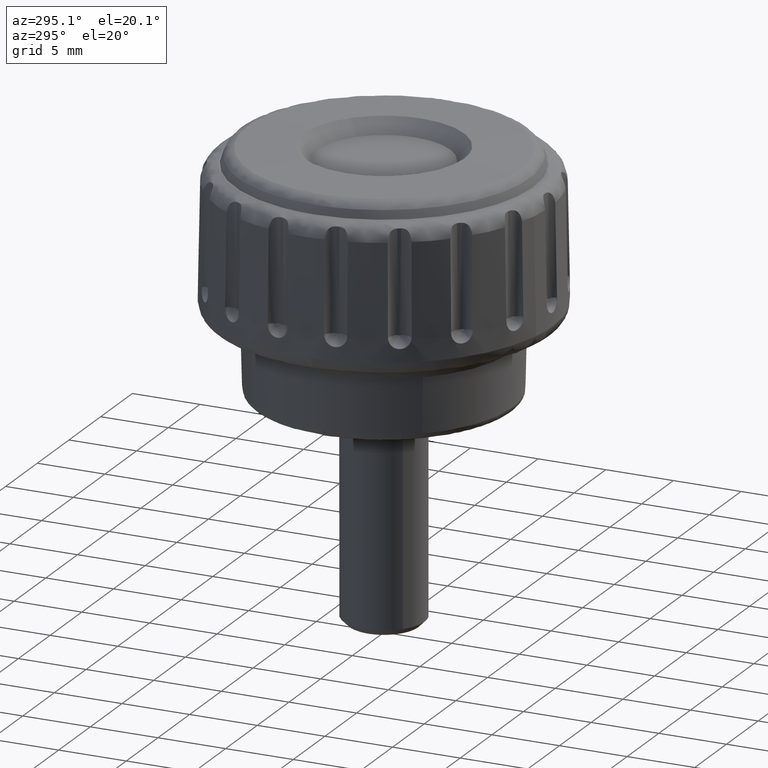
[diagram: clean part render]
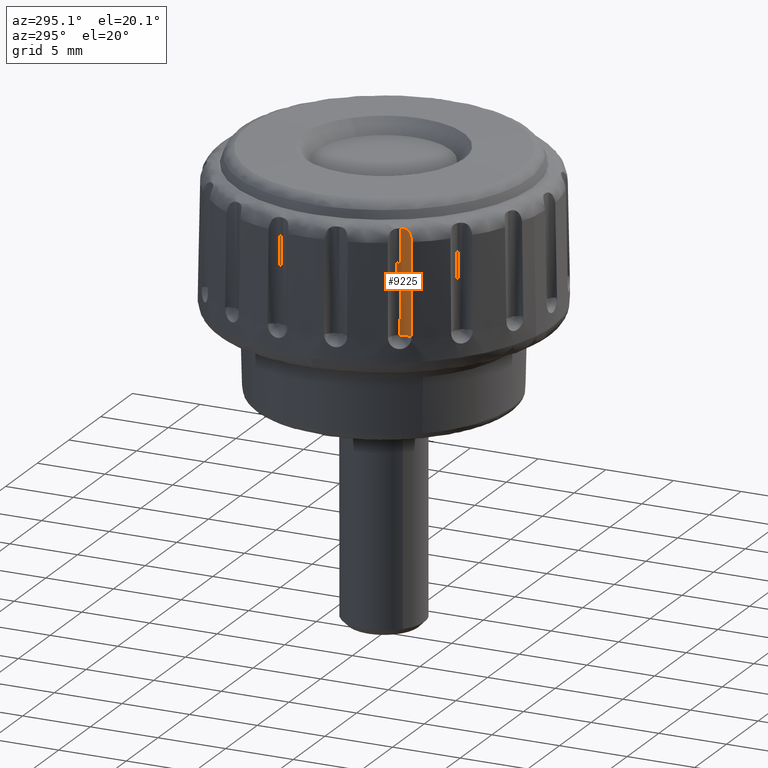
[diagram: same view with one face highlighted and labeled with its STEP entity id]
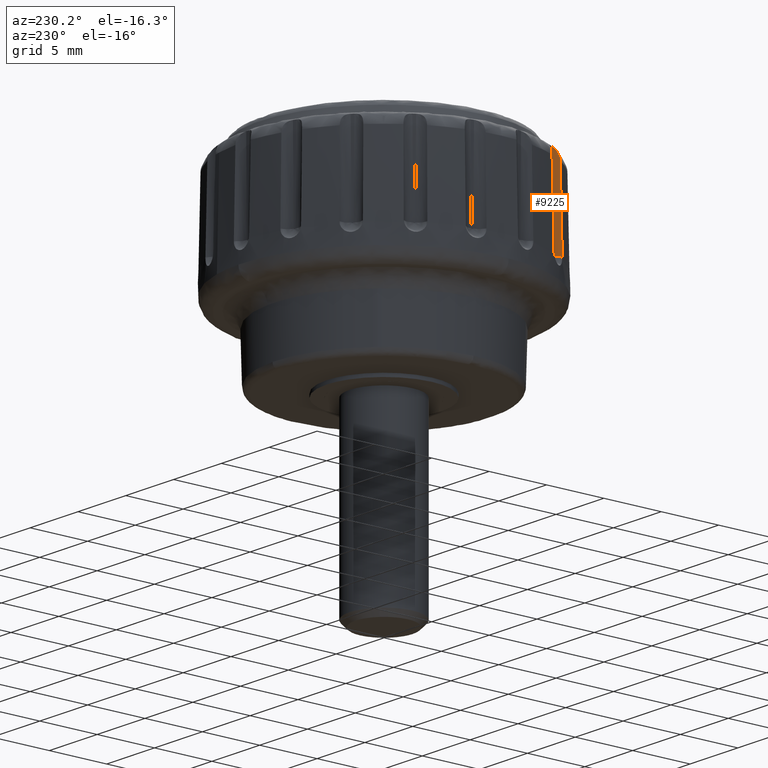
[diagram: same view with one face highlighted and labeled with its STEP entity id]
A machine part, auxiliary view. The second image highlights one B-rep face of the part: STEP entity #9225.
A second angle (auxiliary view) of the same face is appended — the face is thin or edge-on in the first view.
In plain terms, the highlighted face is a freeform B-spline surface patch.
Its self-contained STEP definition (entity closure, byte-faithful):
#2913=CARTESIAN_POINT('',(-10.235761916757760,-6.833379174003990,15.524289876473100));
#2914=VERTEX_POINT('',#2913);
#2922=CARTESIAN_POINT('',(-10.353922590560940,-6.901599270831820,8.800002999999810));
#2923=VERTEX_POINT('',#2922);
#2924=CARTESIAN_POINT('',(-10.353922590560940,-6.901599270831820,8.800002999999810));
#2925=CARTESIAN_POINT('',(-10.235761916757760,-6.833379174003990,15.524289876473100));
#2926=QUASI_UNIFORM_CURVE('',1,(#2924,#2925),.UNSPECIFIED.,.F.,.U.);
#2927=EDGE_CURVE('',#2923,#2914,#2926,.T.);
#4899=CARTESIAN_POINT('',(-10.240891056079320,-6.062250376092880,16.400364117337599));
#4900=VERTEX_POINT('',#4899);
#4906=CARTESIAN_POINT('',(-10.240891056079340,-6.062250376092851,16.400364117337599));
#4907=CARTESIAN_POINT('',(-10.212978633883729,-6.110596109497878,16.399828393956930));
#4908=CARTESIAN_POINT('',(-10.190778172904350,-6.160613144053783,16.393970564865139));
#4909=CARTESIAN_POINT('',(-10.165426010287529,-6.237831836419262,16.376831468272531));
#4910=CARTESIAN_POINT('',(-10.158320543684990,-6.264013673481690,16.369646716176302));
#4911=CARTESIAN_POINT('',(-10.147077386690651,-6.315348636194212,16.352686474206038));
#4912=CARTESIAN_POINT('',(-10.142862405664490,-6.340708538413287,16.342874288419381));
#4913=CARTESIAN_POINT('',(-10.136948271094541,-6.390704319358210,16.320433887607528));
#4914=CARTESIAN_POINT('',(-10.135249204928369,-6.415494183121628,16.307711572584569));
#4915=CARTESIAN_POINT('',(-10.134128407077711,-6.463440571867735,16.279624840757450));
#4916=CARTESIAN_POINT('',(-10.134690843784570,-6.486446211325919,16.264373108261029));
#4917=CARTESIAN_POINT('',(-10.137574261438109,-6.530538997806312,16.231436317714000));
#4918=CARTESIAN_POINT('',(-10.139896716244021,-6.551625623415533,16.213750677826958));
#4919=CARTESIAN_POINT('',(-10.145879448703919,-6.591854829503867,16.175878208810460));
#4920=CARTESIAN_POINT('',(-10.149523146889759,-6.610848905021022,16.155809118573249));
#4921=CARTESIAN_POINT('',(-10.157534217439061,-6.646151592895026,16.114104184054170));
#4922=CARTESIAN_POINT('',(-10.161916864336931,-6.662559348565540,16.092376694210660));
#4923=CARTESIAN_POINT('',(-10.171040527536620,-6.693049242138306,16.047217969913710));
#4924=CARTESIAN_POINT('',(-10.175804025852150,-6.707188319050943,16.023675052252500));
#4925=CARTESIAN_POINT('',(-10.189963570936740,-6.745844049648587,15.951357352452209));
#4926=CARTESIAN_POINT('',(-10.199127402508051,-6.766513853382408,15.901287818296030));
#4927=CARTESIAN_POINT('',(-10.211074100628499,-6.791239965497886,15.823665248984630));
#4928=CARTESIAN_POINT('',(-10.214763697374600,-6.798424466028222,15.797368541759820));
#4929=CARTESIAN_POINT('',(-10.221389361532660,-6.810790106051584,15.743943129673740));
#4930=CARTESIAN_POINT('',(-10.224330948252970,-6.815978997291327,15.716732451575160));
#4931=CARTESIAN_POINT('',(-10.231727412325339,-6.828469479455984,15.634901959451780));
#4932=CARTESIAN_POINT('',(-10.234785673133530,-6.832815539484591,15.579844652783621));
#4933=CARTESIAN_POINT('',(-10.235761916757760,-6.833379174003990,15.524289876473100));
#4934=B_SPLINE_CURVE_WITH_KNOTS('',3,(#4906,#4907,#4908,#4909,#4910,#4911,#4912,#4913,#4914,#4915,#4916,#4917,#4918,#4919,#4920,#4921,#4922,#4923,#4924,#4925,#4926,#4927,#4928,#4929,#4930,#4931,#4932,#4933),.UNSPECIFIED.,.F.,.U.,(4,2,2,2,2,2,2,2,2,2,2,2,2,4),(0.0,0.125000000000002,0.187500000000003,0.250000000000003,0.312500000000003,0.375000000000004,0.437500000000004,0.500000000000004,0.562500000000005,0.625000000000005,0.749999999999998,0.812499999999998,0.874999999999999,1.0),.UNSPECIFIED.);
#4935=EDGE_CURVE('',#4900,#2914,#4934,.T.);
#9164=CARTESIAN_POINT('',(-10.279930491354760,-5.994632090697040,8.805733710091390));
#9165=VERTEX_POINT('',#9164);
#9166=CARTESIAN_POINT('',(-10.353922590560940,-6.901599270831820,8.800002999999810));
#9167=CARTESIAN_POINT('',(-10.296364701587050,-6.831435045802613,8.800247898031154));
#9168=CARTESIAN_POINT('',(-10.213128284049199,-6.684598901498140,8.800902890960661));
#9169=CARTESIAN_POINT('',(-10.166650456143159,-6.460210893566428,8.802212844471114));
#9170=CARTESIAN_POINT('',(-10.178546696972029,-6.227103906707183,8.803804088489791));
#9171=CARTESIAN_POINT('',(-10.231955314375060,-6.077556164079894,8.805000186132739));
#9172=CARTESIAN_POINT('',(-10.279930491354760,-5.994632090697040,8.805733710091390));
#9173=B_SPLINE_CURVE_WITH_KNOTS('',3,(#9166,#9167,#9168,#9169,#9170,#9171,#9172),.UNSPECIFIED.,.F.,.U.,(4,1,1,1,4),(0.000000031964275,0.272247234012595,0.499111616337480,0.680615510264576,0.967989010171782),.UNSPECIFIED.);
#9174=EDGE_CURVE('',#2923,#9165,#9173,.T.);
#9193=CARTESIAN_POINT('',(-10.219717970701501,-6.824116197430127,16.437294547870170));
#9194=CARTESIAN_POINT('',(-10.264452407346900,-6.849943636339934,13.891622866936951));
#9195=CARTESIAN_POINT('',(-10.309187795996340,-6.875771625142860,11.345828856094069));
#9196=CARTESIAN_POINT('',(-10.353922590560691,-6.901599270832269,8.800002999999810));
#9197=CARTESIAN_POINT('',(-10.024078008045231,-6.437781591031820,16.440431891934640));
#9198=CARTESIAN_POINT('',(-10.021004528592872,-6.443105013628632,13.894150822212003));
#9199=CARTESIAN_POINT('',(-10.014002183430051,-6.455233431181878,11.347799259353049));
#9200=CARTESIAN_POINT('',(-10.003347341270167,-6.473688159161013,8.801498297712264));
#9201=CARTESIAN_POINT('',(-10.240588019337880,-6.062775251125642,16.446170015067480));
#9202=CARTESIAN_POINT('',(-10.257461818102930,-6.033548974348143,13.899451326090769));
#9203=CARTESIAN_POINT('',(-10.270181269563180,-6.011518238174189,11.352607337267850));
#9204=CARTESIAN_POINT('',(-10.279931515673400,-5.994630316525129,8.805733708062036));
#9212=(BOUNDED_SURFACE()B_SPLINE_SURFACE(3,2,((#9193,#9197,#9201),(#9194,#9198,#9202),(#9195,#9199,#9203),(#9196,#9200,#9204)),.UNSPECIFIED.,.F.,.F.,.U.)B_SPLINE_SURFACE_WITH_KNOTS((4,4),(3,3),(0.0,7.721365348332246),(0.0,1.0),.UNSPECIFIED.)GEOMETRIC_REPRESENTATION_ITEM()RATIONAL_B_SPLINE_SURFACE(((1.0,0.879418671319683,1.0),(1.0,0.861062463799065,1.0),(1.0,0.842135236060394,1.0),(1.0,0.822510399759751,1.0)))REPRESENTATION_ITEM('')SURFACE());
#9213=ORIENTED_EDGE('',*,*,#4935,.F.);
#9214=CARTESIAN_POINT('',(-10.279930491354760,-5.994632090697040,8.805733710091390));
#9215=CARTESIAN_POINT('',(-10.270239031253780,-6.011418191991459,11.337340997536330));
#9216=CARTESIAN_POINT('',(-10.257612657159800,-6.033287713437589,13.868903114757140));
#9217=CARTESIAN_POINT('',(-10.240891056079320,-6.062250376092880,16.400364117337599));
#9218=QUASI_UNIFORM_CURVE('',3,(#9214,#9215,#9216,#9217),.UNSPECIFIED.,.F.,.U.);
#9219=EDGE_CURVE('',#9165,#4900,#9218,.T.);
#9220=ORIENTED_EDGE('',*,*,#9219,.F.);
#9221=ORIENTED_EDGE('',*,*,#9174,.F.);
#9222=ORIENTED_EDGE('',*,*,#2927,.T.);
#9223=EDGE_LOOP('',(#9213,#9220,#9221,#9222));
#9224=FACE_OUTER_BOUND('',#9223,.T.);
#9225=ADVANCED_FACE('',(#9224),#9212,.F.);